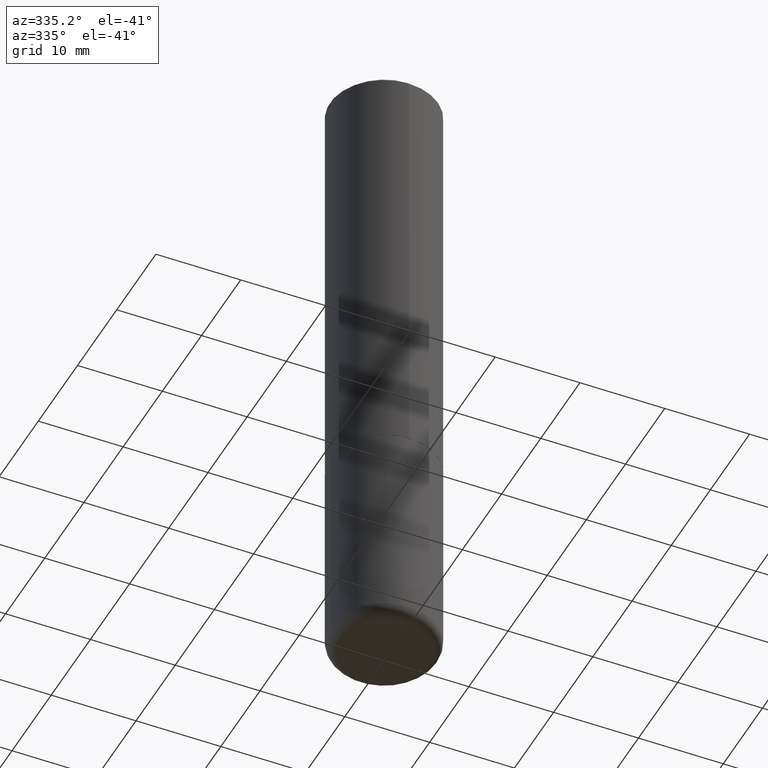
[diagram: clean part render]
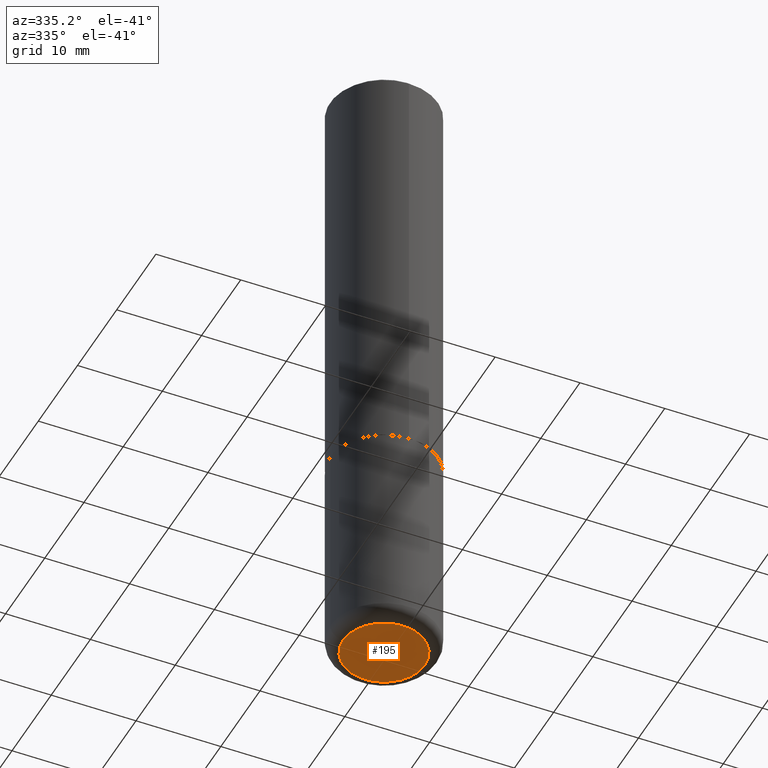
[diagram: same view with one face highlighted and labeled with its STEP entity id]
A machine part, auxiliary view. The second image highlights one B-rep face of the part: STEP entity #195.
In plain terms, the highlighted planar face has unit normal (0, -0, -1).
Its self-contained STEP definition (entity closure, byte-faithful):
#24 = FACE_OUTER_BOUND ( 'NONE', #311, .T. ) ;
#27 = CARTESIAN_POINT ( 'NONE',  ( -0.1899999999999999745, -8.806505557691924342E-15, -2.999999999999999556 ) ) ;
#44 = VERTEX_POINT ( 'NONE', #292 ) ;
#54 = EDGE_CURVE ( 'NONE', #44, #97, #243, .T. ) ;
#97 = VERTEX_POINT ( 'NONE', #27 ) ;
#155 = PLANE ( 'NONE',  #212 ) ;
#157 = CARTESIAN_POINT ( 'NONE',  ( 1.336053039146161825E-28, -1.847555615484388985E-15, -2.999999999999999556 ) ) ;
#161 = EDGE_CURVE ( 'NONE', #97, #44, #173, .T. ) ;
#173 = CIRCLE ( 'NONE', #339, 0.1899999999999999745 ) ;
#187 = CARTESIAN_POINT ( 'NONE',  ( 7.336406418555408669E-29, -1.047444401652943478E-14, -2.999999999999999556 ) ) ;
#193 = DIRECTION ( 'NONE',  ( -1.000000000000000000, 6.982962677686265922E-15, -4.876176775795935793E-29 ) ) ;
#195 = ADVANCED_FACE ( 'NONE', ( #24 ), #155, .T. ) ;
#212 = AXIS2_PLACEMENT_3D ( 'NONE', #157, #222, #193 ) ;
#219 = DIRECTION ( 'NONE',  ( 1.000000000000000000, -6.982962677686273021E-15, 0.000000000000000000 ) ) ;
#222 = DIRECTION ( 'NONE',  ( 2.438088387897960049E-29, -3.491481338843145188E-15, -1.000000000000000000 ) ) ;
#225 = DIRECTION ( 'NONE',  ( -2.445468806185136597E-29, 3.491481338843145583E-15, 1.000000000000000000 ) ) ;
#243 = CIRCLE ( 'NONE', #367, 0.1899999999999999745 ) ;
#255 = DIRECTION ( 'NONE',  ( -2.445468806185136597E-29, 3.491481338843145583E-15, 1.000000000000000000 ) ) ;
#286 = ORIENTED_EDGE ( 'NONE', *, *, #54, .F. ) ;
#292 = CARTESIAN_POINT ( 'NONE',  ( 0.1899999999999999745, -1.180120692528982640E-14, -2.999999999999999556 ) ) ;
#294 = CARTESIAN_POINT ( 'NONE',  ( 7.336406418555408669E-29, -1.047444401652943478E-14, -2.999999999999999556 ) ) ;
#311 = EDGE_LOOP ( 'NONE', ( #286, #357 ) ) ;
#321 = DIRECTION ( 'NONE',  ( 1.000000000000000000, -6.982962677686273021E-15, 0.000000000000000000 ) ) ;
#339 = AXIS2_PLACEMENT_3D ( 'NONE', #294, #255, #219 ) ;
#357 = ORIENTED_EDGE ( 'NONE', *, *, #161, .F. ) ;
#367 = AXIS2_PLACEMENT_3D ( 'NONE', #187, #225, #321 ) ;